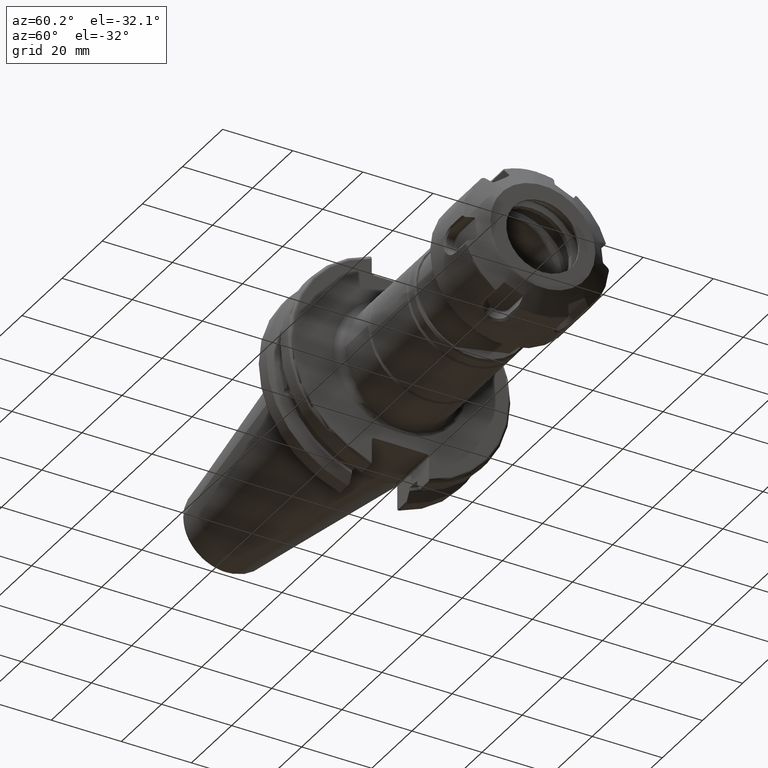
[diagram: clean part render]
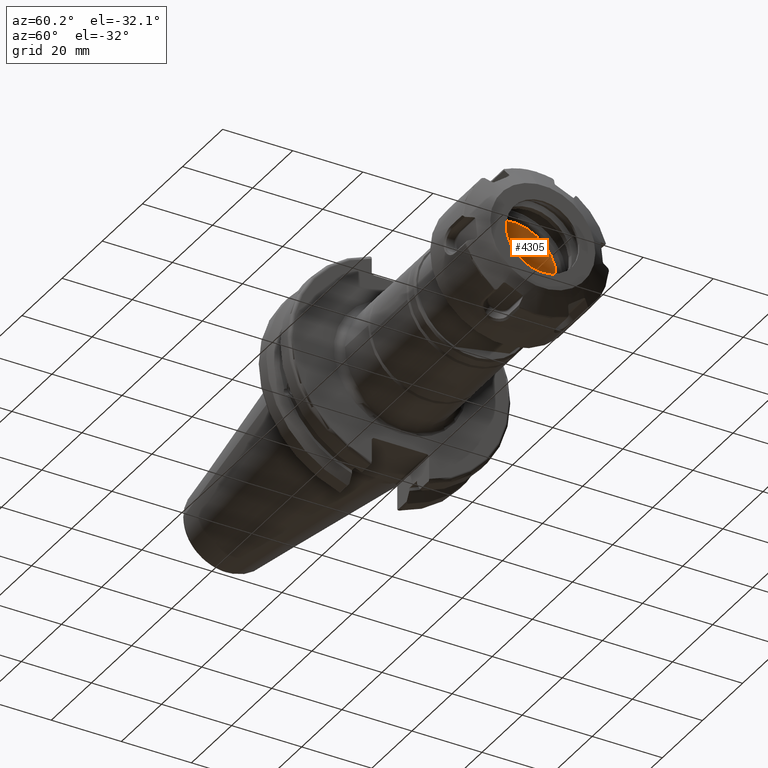
[diagram: same view with one face highlighted and labeled with its STEP entity id]
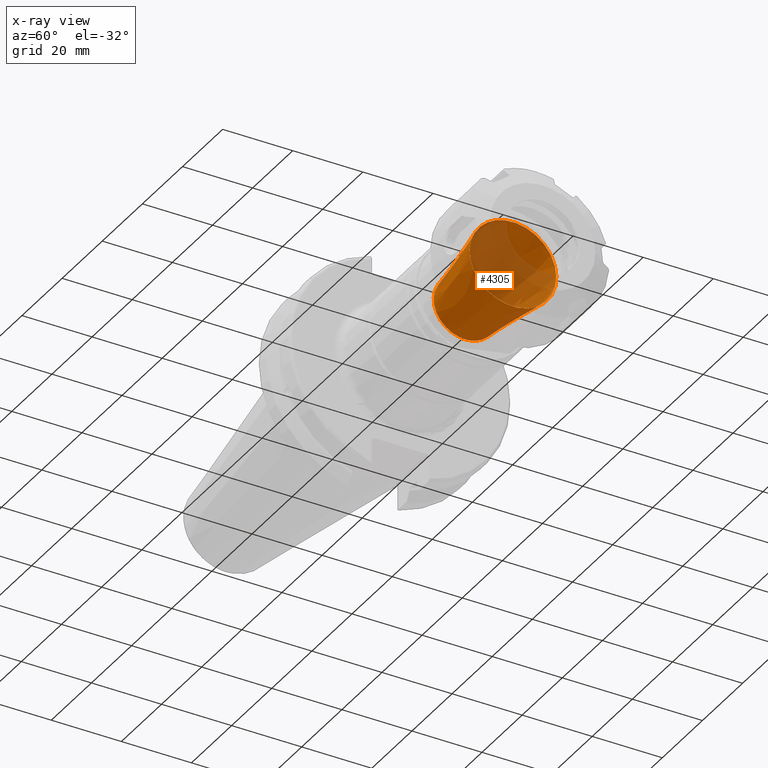
[diagram: x-ray of the same camera — body ghosted, the highlighted face saturated]
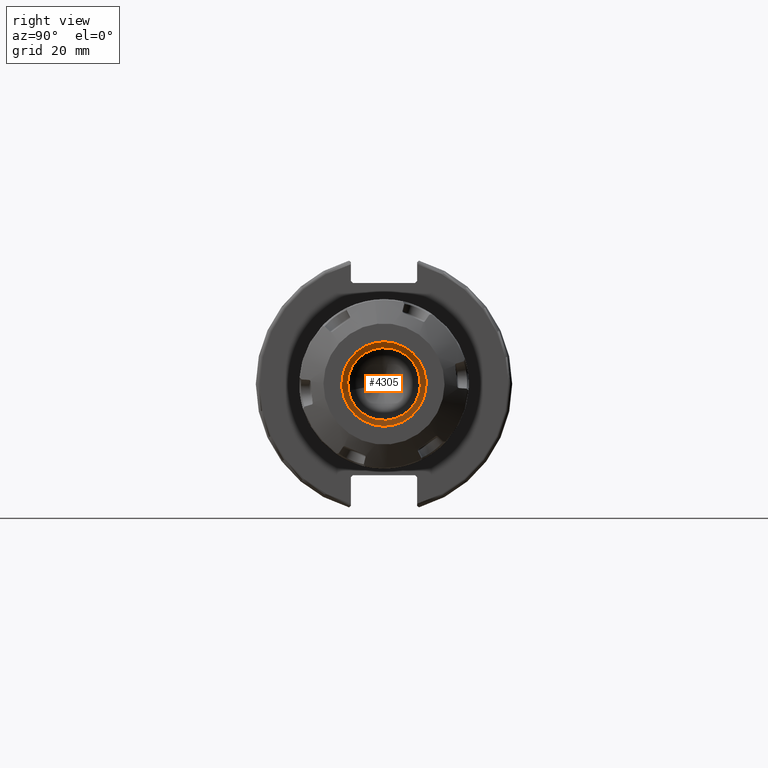
[diagram: same view with one face highlighted and labeled with its STEP entity id]
A machine part, auxiliary view. The second image highlights one B-rep face of the part: STEP entity #4305.
The next image is the same camera in x-ray: the body ghosted, the highlighted face saturated — about 43% of this face is hidden behind the body in this view.
A second angle (right view) of the same face is appended — the face is thin or edge-on in the first view.
In plain terms, the highlighted conical surface has half-angle 8 deg.
Its self-contained STEP definition (entity closure, byte-faithful):
#729=FACE_OUTER_BOUND('',#1021,.T.);
#1021=EDGE_LOOP('',(#3899,#3900,#3901,#3902,#3903));
#1297=LINE('',#8861,#1549);
#1549=VECTOR('',#6083,10.75);
#1759=CIRCLE('',#4896,12.3548224028896);
#1760=CIRCLE('',#4897,12.3548224028896);
#1762=CIRCLE('',#4900,9.);
#2166=VERTEX_POINT('',#8854);
#2167=VERTEX_POINT('',#8855);
#2168=VERTEX_POINT('',#8860);
#2753=EDGE_CURVE('',#2166,#2167,#1759,.T.);
#2754=EDGE_CURVE('',#2167,#2166,#1760,.T.);
#2756=EDGE_CURVE('',#2167,#2168,#1297,.T.);
#2757=EDGE_CURVE('',#2168,#2168,#1762,.T.);
#3899=ORIENTED_EDGE('',*,*,#2753,.F.);
#3900=ORIENTED_EDGE('',*,*,#2754,.F.);
#3901=ORIENTED_EDGE('',*,*,#2756,.T.);
#3902=ORIENTED_EDGE('',*,*,#2757,.F.);
#3903=ORIENTED_EDGE('',*,*,#2756,.F.);
#4071=CONICAL_SURFACE('',#4899,10.75,0.139626340159547);
#4305=ADVANCED_FACE('',(#729),#4071,.F.);
#4896=AXIS2_PLACEMENT_3D('',#8856,#6075,#6076);
#4897=AXIS2_PLACEMENT_3D('',#8857,#6077,#6078);
#4899=AXIS2_PLACEMENT_3D('',#8859,#6081,#6082);
#4900=AXIS2_PLACEMENT_3D('',#8862,#6084,#6085);
#6075=DIRECTION('center_axis',(-1.,0.,0.));
#6076=DIRECTION('ref_axis',(0.,-1.,3.06161699786838E-17));
#6077=DIRECTION('center_axis',(-1.,0.,0.));
#6078=DIRECTION('ref_axis',(0.,-1.,3.06161699786838E-17));
#6081=DIRECTION('center_axis',(1.,0.,0.));
#6082=DIRECTION('ref_axis',(0.,1.,0.));
#6083=DIRECTION('',(-0.99026806874157,0.139173100960066,1.70437892618156E-17));
#6084=DIRECTION('center_axis',(1.,0.,0.));
#6085=DIRECTION('ref_axis',(0.,0.,-1.));
#8854=CARTESIAN_POINT('',(22.9670077211521,-1.51302937097327E-15,12.3548224028896));
#8855=CARTESIAN_POINT('',(22.9670077211521,-12.3548224028896,-1.51302937097327E-15));
#8856=CARTESIAN_POINT('Origin',(22.9670077211521,0.,-1.89128671371659E-15));
#8857=CARTESIAN_POINT('Origin',(22.9670077211521,0.,-1.89128671371659E-15));
#8859=CARTESIAN_POINT('Origin',(11.5481029858277,0.,0.));
#8860=CARTESIAN_POINT('',(-0.903794028344671,-9.,-1.10218211923262E-15));
#8861=CARTESIAN_POINT('',(11.5481029858277,-10.75,-1.3164953090834E-15));
#8862=CARTESIAN_POINT('Origin',(-0.903794028344671,0.,0.));